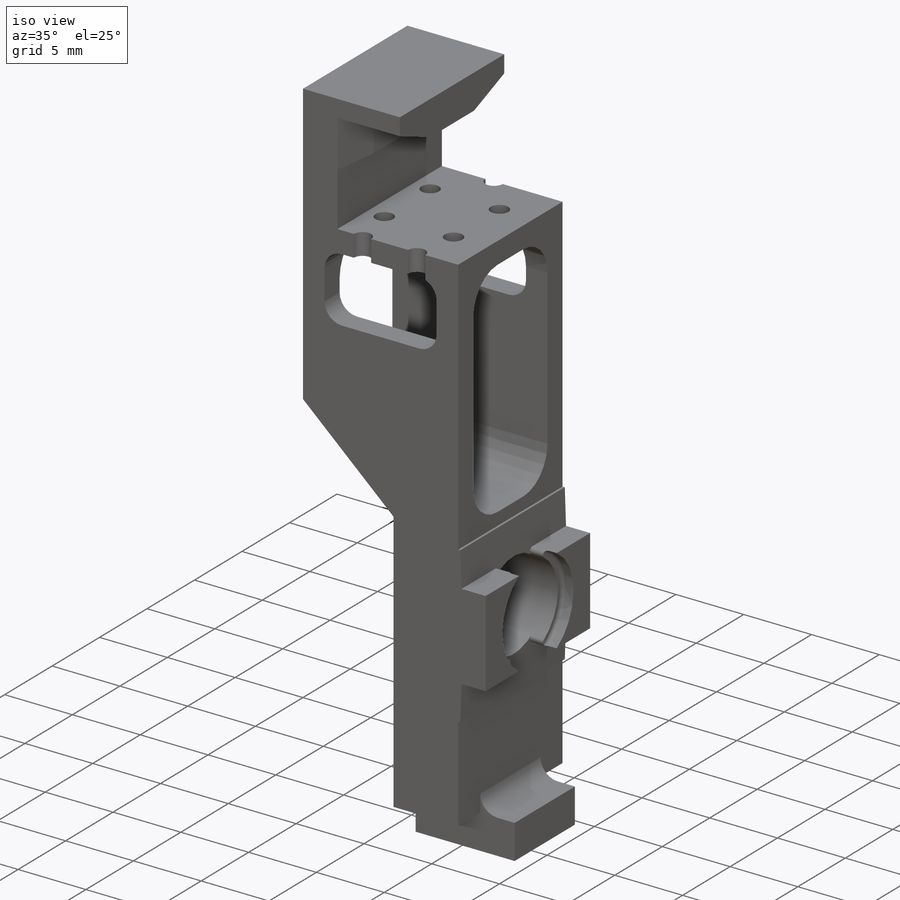
[diagram: iso view]
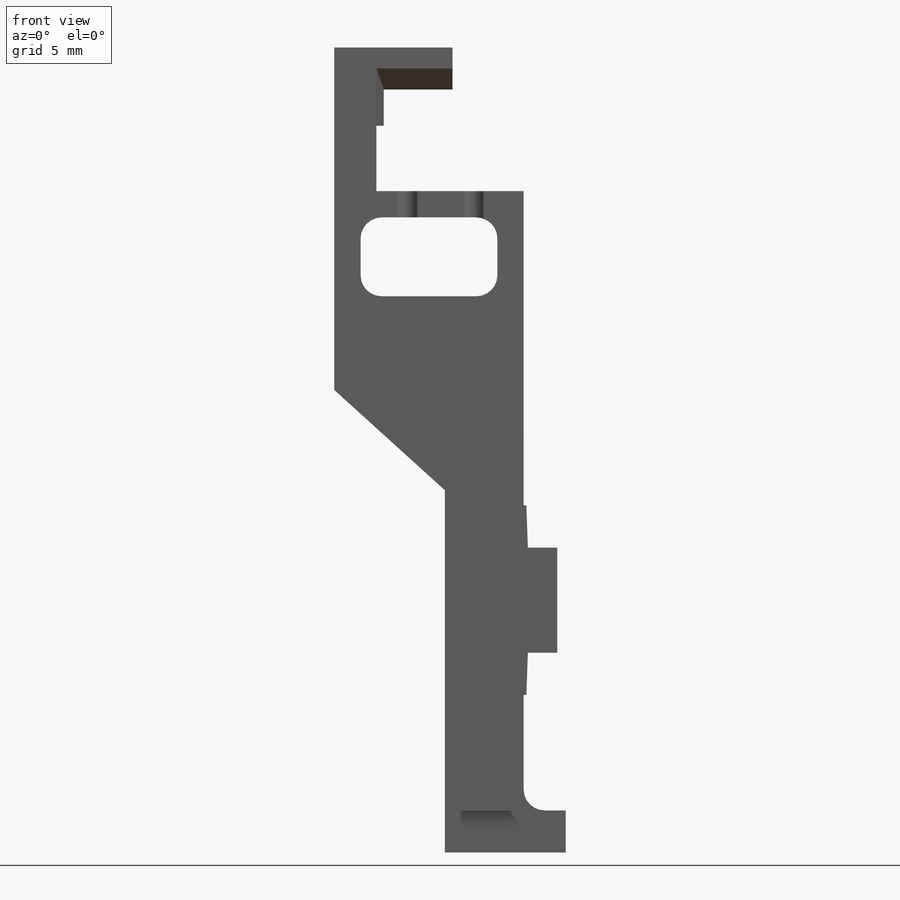
[diagram: front view]
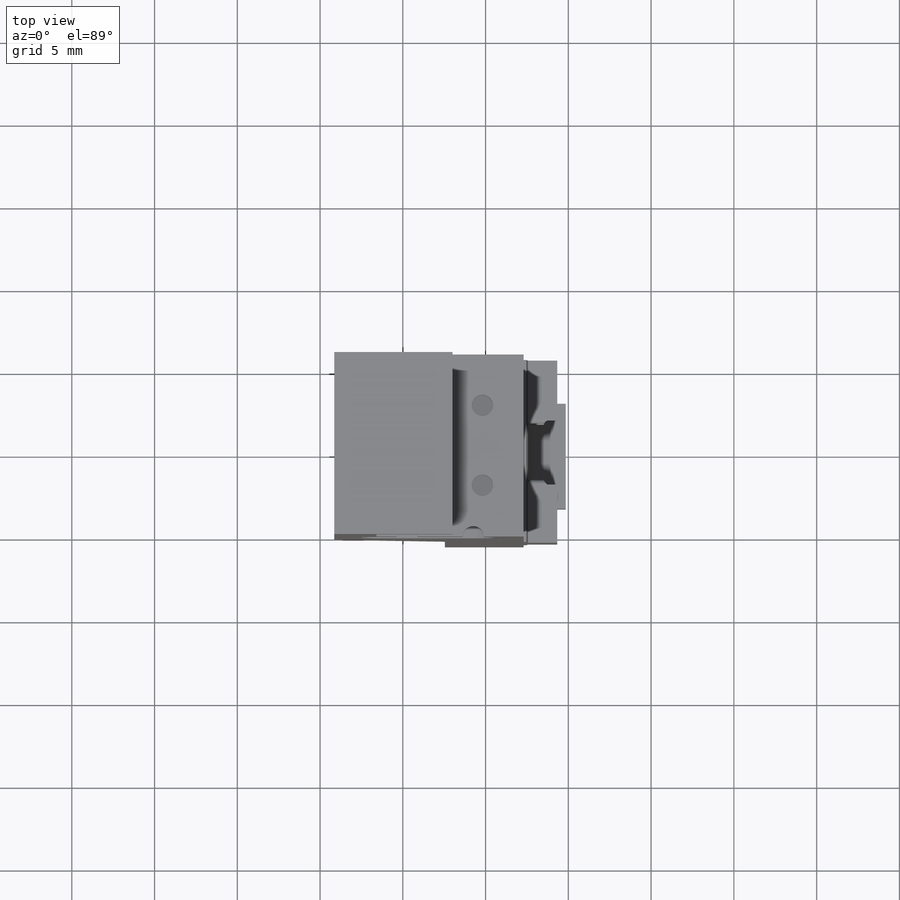
[diagram: top view]
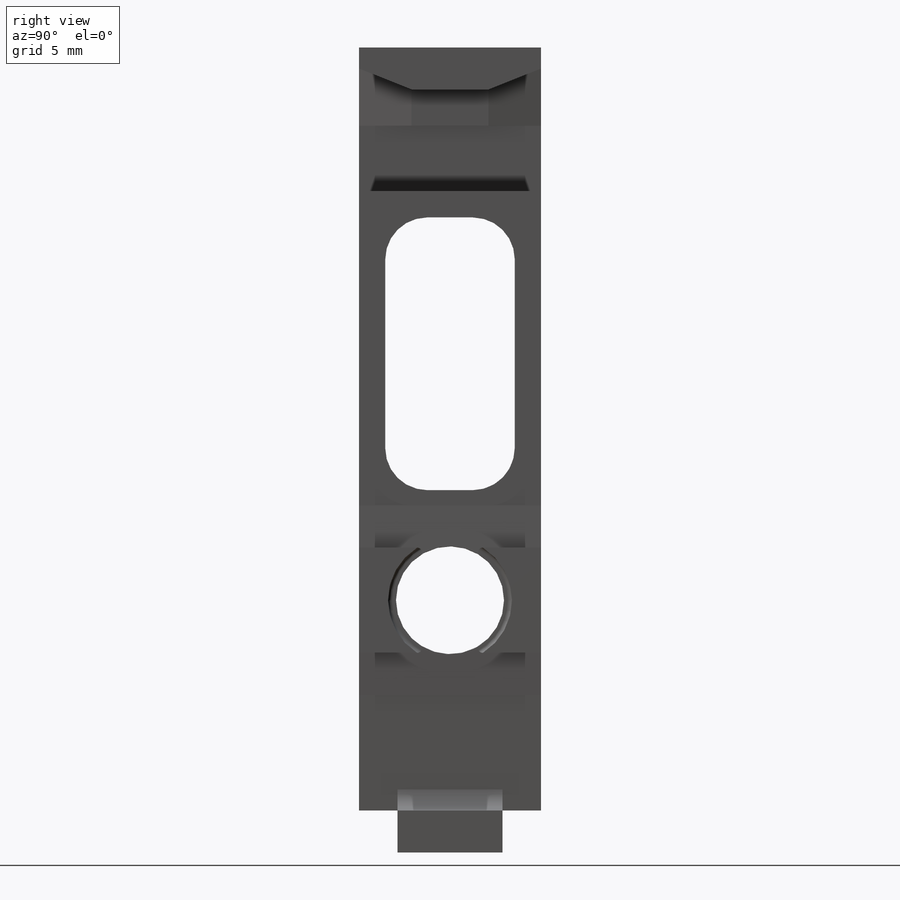
[diagram: right view]
SOLIDWORKS PART (.sldprt)
format: sldprt  version: not decoded by parser v0  size: 2,032,640 bytes
history: native  units: mm
features: sketch x32, extrude x14, fillet x11, cut_extrude x10, mirror x2, material x1, plane x1, hole x1 (+12 scaffold rows collapsed)
feature tree (84):
  scaffold x12  (default folders/planes/origin — collapsed)
  material  "Material <not specified>"
  sketch  "Sketch1"  dims[c1.D1=25.4mm c1.D2=25.4mm c1.D3=0.8128mm c1.D4=42.0mm c1.D5=30.07mm c1.D6=3.8mm c1.D7=7.7mm c1.D8=4.0mm c1.D9=1.25mm c1.D10=1.27mm c1.D11=4.2mm c2.D5=~30.59684mm]
  sketch  "Sketch2"  dims[c1.D1=4.7625mm c1.D2=0.254mm c1.D3=0.1524mm c1.D4=2.54mm c1.D5=2.54mm c1.D6=1.27mm c2.D1=4.7625mm c2.D6=4.0mm c2.D7=~6.64845mm c2.D2=0.254mm c2.D8=0.1524mm]
  extrude  "Boss-Extrude1"  Depth=11mm
  sketch  "Sketch28"  dims[D1=1.27mm]
  sketch  "Sketch30"  dims[D1=3.175mm]
  sketch  "3DSketch1"
  sketch  "Sketch15"  dims[D1=1.27mm]
  cut_extrude  "Cut-Extrude8"  [1 undecoded]
  mirror  "Mirror3"
  sketch  "Sketch4"  dims[D1=6.35mm D2=2.032mm]
  extrude  "Boss-Extrude2"  Depth=11mm
  sketch  "Sketch10"  dims[D1=1.27mm]
  cut_extrude  "Cut-Extrude3"  [1 undecoded]
  sketch  "Sketch11"  dims[D4=1.3mm D1=4.83mm D2=5.11mm D3=3.85mm]
  cut_extrude  "Cut-Extrude4"  Depth=0.762mm
  sketch  "Sketch16"  dims[D2=1.5875mm D3=1.5875mm D1=1.5875mm]
  cut_extrude  "Cut-Extrude9"  Depth=13.462mm
  fillet  "Fillet5"  Radius=1.27mm
  sketch  "Sketch33"  dims[D1=6.35mm D2=2.54mm]
  extrude  "Boss-Extrude13"  [1 undecoded]
  sketch  "Sketch34"
  sketch  "Sketch35"
  extrude  "Boss-Extrude16"  [1 undecoded]
  sketch  "Sketch17"  dims[c1.D9=~0.75946mm c1.D10=~0.12954mm c2.D9=~0.75946mm c2.D11=~0.24892mm c2.D10=~0.12954mm c2.D1=~22.78888mm c2.D2=~9.53008mm c2.D3=~1.50114mm c2.D4=~6.70052mm c2.D5=~17.12722mm c2.D6=~4.57962mm c2.D7=~0.907571mm c3.D7=67.17deg c3.D8=~1.44272mm c3.D12=~22.78888mm c3.D13=90.0deg c4.D13=~22.91842mm c4.D14=~22.91842mm c5.D13=~22.78888mm c5.D10=~23.037748mm c5.D12=~22.91842mm c6.D13=~22.78888mm c6.D12=~22.78888mm c6.D5=14.478mm c7.D12=9.906mm c7.D4=~7.50062mm]
  sketch  "Sketch36"
  extrude  "Boss-Extrude17"  [1 undecoded]
  sketch  "Sketch27"  dims[D1=1.5875mm D2=1.5875mm D3=1.5875mm D4=7.825mm]
  cut_extrude  "Cut-Extrude11"  [1 undecoded]
  sketch  "Sketch18"  dims[D1=1.5875mm]
  extrude  "Boss-Extrude3"  Depth=1.27mm
  sketch  "Sketch20"  dims[D1=2.54mm]
  extrude  "Boss-Extrude5"  Depth=1.27mm
  sketch  "Sketch19"  dims[D1=~2.70166mm]
  extrude  "Boss-Extrude4"  Depth=6.096mm
  sketch  "Sketch21"  dims[D1=0.0mm]
  extrude  "Boss-Extrude6"  [1 undecoded]
  sketch  "Sketch22"
  extrude  "Boss-Extrude7"  [1 undecoded]
  sketch  "Sketch23"  dims[D1=0.0mm]
  extrude  "Boss-Extrude9"  [1 undecoded]
  sketch  "Sketch24"  dims[D1=0.0mm]
  sketch  "Sketch25"  dims[D1=0.0mm]
  extrude  "Boss-Extrude11"  [1 undecoded]
  extrude  "Boss-Extrude12"  [1 undecoded]
  plane  "Plane1"
  sketch  "Sketch5"  dims[D1=7.493mm]
  cut_extrude  "Cut-Extrude2"  Depth=0.8128mm
  hole  "1/4 Clearance Hole1"  Diameter=6.5278mm Depth=6.35mm
  sketch  "Sketch8"  dims[D1=27.8892mm]
  sketch  "Sketch7"  dims[hole-wizard template sketch: 47 standard entries collapsed; hole parameters kept: c15.Hole Depth=6.35mm c15.D3=~14.816244mm c15.Drill Angle=118.0deg]
  mirror  "Mirror6"
  fillet  "Fillet2"  Radius=0.254mm
  fillet  "Fillet12"  Radius=0.254mm
  sketch  "Sketch26"  dims[D1=19.05mm D2=17.78mm D3=1.5875mm D4=1.5875mm]
  cut_extrude  "Cut-Extrude10"  [1 undecoded]
  fillet  "Fillet6"  Radius=2.54mm
  fillet  "Fillet7"  Radius=2.54mm
  fillet  "Fillet8"  Radius=1.27mm
  sketch  "Sketch31"  dims[c1.D1=1.5875mm c1.D2=1.5875mm c1.D3=~7.96754mm c2.D3=~177.184752deg c3.D3=1.5875mm c3.D4=1.5875mm c3.D1=4.7625mm c4.D3=1.5875mm]
  cut_extrude  "Cut-Extrude12"  Depth=11.176mm
  sketch  "Sketch32"
  cut_extrude  "Cut-Extrude13"  [1 undecoded]
  fillet  "Fillet13"  Radius=0.254mm
  fillet  "Fillet11"  Radius=0.254mm
  fillet  "Fillet14"  Radius=1.27mm
  fillet  "Fillet15"  Radius=1.27mm
  sketch  "Sketch37"  dims[c1.D5=0.254mm c1.D3=0.254mm c1.D4=0.254mm c2.D5=~0.38354mm c2.D1=0.0mm c2.D2=0.0mm]
  cut_extrude  "Cut-Extrude14"  [1 undecoded]
  sketch  "Sketch38"
  extrude  "Boss-Extrude18"  Depth=2.54mm
  fillet  "Fillet16"  Radius=1.27mm
decode coverage: 47 of 70 modeling features carry decoded parameters
note: ~ marks probable driven/reference dimensions
note: 14 parameter values undecoded
summary: no parameter record found for 14 features
note: suppression state not decoded; provenance and decode notes live in map.json
